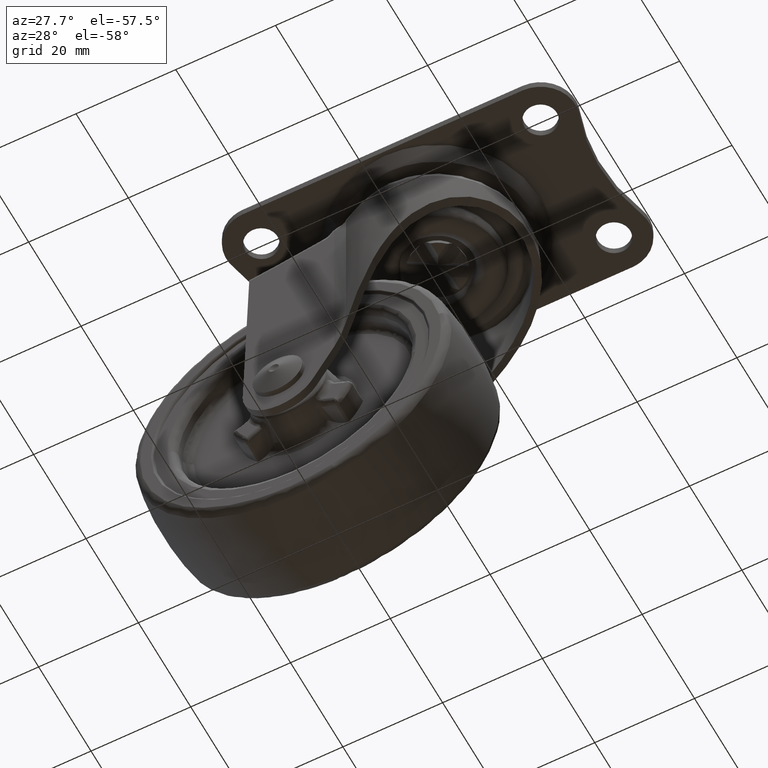
[diagram: clean part render]
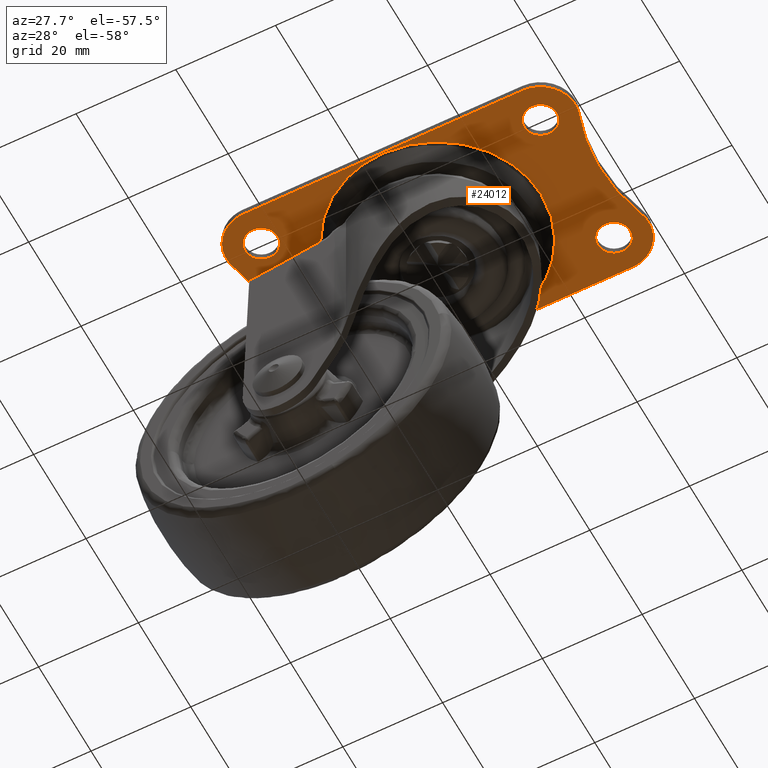
[diagram: same view with one face highlighted and labeled with its STEP entity id]
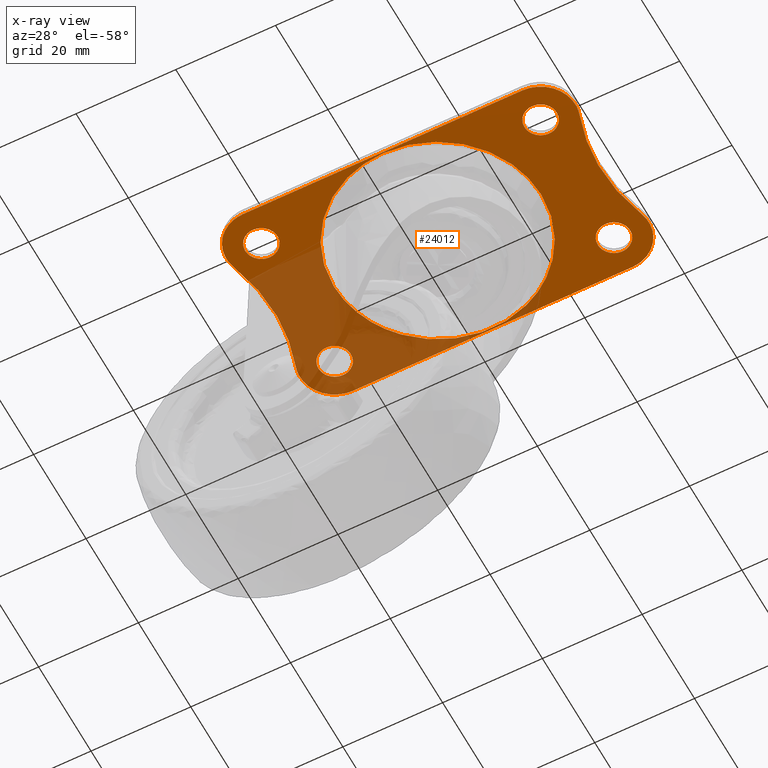
[diagram: x-ray of the same camera — body ghosted, the highlighted face saturated]
A machine part, auxiliary view. The second image highlights one B-rep face of the part: STEP entity #24012.
The next image is the same camera in x-ray: the body ghosted, the highlighted face saturated — about 34% of this face is hidden behind the body in this view.
In plain terms, the highlighted face is a freeform B-spline surface patch.
Its self-contained STEP definition (entity closure, byte-faithful):
#17309=CARTESIAN_POINT('',(-30.098661756561071,16.481556130959309,-3.385563E-011));
#17310=VERTEX_POINT('',#17309);
#17311=CARTESIAN_POINT('',(-31.249999800000001,14.0,0.0));
#17312=VERTEX_POINT('',#17311);
#17313=CARTESIAN_POINT('',(-30.098661756561071,16.481556130959309,-3.385563E-011));
#17314=CARTESIAN_POINT('',(-30.289575070038399,16.320144193689671,-3.165350E-011));
#17315=CARTESIAN_POINT('',(-30.674464882642411,15.909821605328609,-2.605551E-011));
#17316=CARTESIAN_POINT('',(-31.126613348684192,15.073434524501209,-1.464476E-011));
#17317=CARTESIAN_POINT('',(-31.250261647266630,14.382388011248640,-5.216883E-012));
#17318=CARTESIAN_POINT('',(-31.249999800000001,14.0,0.0));
#17319=B_SPLINE_CURVE_WITH_KNOTS('',3,(#17313,#17314,#17315,#17316,#17317,#17318),.UNSPECIFIED.,.F.,.U.,(4,1,1,4),(0.000000054425803,0.750026321936239,1.676517445390193,2.823627087561114),.UNSPECIFIED.);
#17320=EDGE_CURVE('',#17310,#17312,#17319,.T.);
#17381=CARTESIAN_POINT('',(-25.642533913733349,16.237151986497789,1.696325E-011));
#17382=VERTEX_POINT('',#17381);
#17388=CARTESIAN_POINT('',(-24.750000199999999,14.0,0.0));
#17389=VERTEX_POINT('',#17388);
#17390=CARTESIAN_POINT('',(-24.750000199999999,14.0,0.0));
#17391=CARTESIAN_POINT('',(-24.749908724318448,14.282743271637200,2.143907E-012));
#17392=CARTESIAN_POINT('',(-24.807411034701978,14.719628276015140,5.456596E-012));
#17393=CARTESIAN_POINT('',(-25.076228163753239,15.499185421873941,1.136760E-011));
#17394=CARTESIAN_POINT('',(-25.376877605744561,15.957663594679561,1.484402E-011));
#17395=CARTESIAN_POINT('',(-25.642533913733349,16.237151986497789,1.696325E-011));
#17396=B_SPLINE_CURVE_WITH_KNOTS('',3,(#17390,#17391,#17392,#17393,#17394,#17395),.UNSPECIFIED.,.F.,.U.,(4,1,1,4),(0.000000029990643,0.848217231585917,1.310863447302272,2.467516890209405),.UNSPECIFIED.);
#17397=EDGE_CURVE('',#17389,#17382,#17396,.T.);
#17399=CARTESIAN_POINT('',(-27.999997940924779,10.750000200000651,0.0));
#17400=VERTEX_POINT('',#17399);
#17401=CARTESIAN_POINT('',(-27.999997940924779,10.750000200000651,0.0));
#17402=CARTESIAN_POINT('',(-27.654316297015239,10.749811396389889,0.0));
#17403=CARTESIAN_POINT('',(-27.096075449333551,10.839956532808021,0.0));
#17404=CARTESIAN_POINT('',(-26.387743144435149,11.153993051849030,0.0));
#17405=CARTESIAN_POINT('',(-25.863496102247691,11.523209799547359,0.0));
#17406=CARTESIAN_POINT('',(-25.421354080932641,11.987597984934119,0.0));
#17407=CARTESIAN_POINT('',(-25.106918248590979,12.484195756553691,0.0));
#17408=CARTESIAN_POINT('',(-24.831369752554721,13.149255115057841,0.0));
#17409=CARTESIAN_POINT('',(-24.749815337546430,13.654316186226330,0.0));
#17410=CARTESIAN_POINT('',(-24.750000199999999,14.0,0.0));
#17411=B_SPLINE_CURVE_WITH_KNOTS('',3,(#17401,#17402,#17403,#17404,#17405,#17406,#17407,#17408,#17409,#17410),.UNSPECIFIED.,.F.,.U.,(4,1,1,1,1,1,1,4),(0.000000089825204,1.036989856927361,1.675164779641794,2.313321336359128,2.951424046667823,3.589597158345651,4.068224926475018,5.105214694363415),.UNSPECIFIED.);
#17412=EDGE_CURVE('',#17400,#17389,#17411,.T.);
#17414=CARTESIAN_POINT('',(-31.249999800000001,14.0,0.0));
#17415=CARTESIAN_POINT('',(-31.250213411659860,13.654312593257410,0.0));
#17416=CARTESIAN_POINT('',(-31.168603753212881,13.149258355041161,0.0));
#17417=CARTESIAN_POINT('',(-30.893084863574050,12.484194795442169,0.0));
#17418=CARTESIAN_POINT('',(-30.578644659373520,11.987597425052529,0.0));
#17419=CARTESIAN_POINT('',(-30.136500792960518,11.523210283037390,0.0));
#17420=CARTESIAN_POINT('',(-29.612253616706070,11.153992291692401,0.0));
#17421=CARTESIAN_POINT('',(-28.903921136315351,10.839957306355981,0.0));
#17422=CARTESIAN_POINT('',(-28.345678394126999,10.749810213535600,0.0));
#17423=CARTESIAN_POINT('',(-27.999997940924779,10.750000200000651,0.0));
#17424=B_SPLINE_CURVE_WITH_KNOTS('',3,(#17414,#17415,#17416,#17417,#17418,#17419,#17420,#17421,#17422,#17423),.UNSPECIFIED.,.F.,.U.,(4,1,1,1,1,1,1,4),(0.000000087005333,1.036990326245083,1.515618312055995,2.153791714684053,2.791894715985495,3.430051564259903,4.068226777025982,5.105217015478970),.UNSPECIFIED.);
#17425=EDGE_CURVE('',#17312,#17400,#17424,.T.);
#17444=CARTESIAN_POINT('',(-28.000002059075200,17.249999799999340,0.0));
#17445=VERTEX_POINT('',#17444);
#17446=CARTESIAN_POINT('',(-28.000002059075200,17.249999799999340,0.0));
#17447=CARTESIAN_POINT('',(-28.404062435999489,17.250354327009479,-6.518311E-012));
#17448=CARTESIAN_POINT('',(-29.164243231566491,17.106216488580291,-1.878157E-011));
#17449=CARTESIAN_POINT('',(-29.826586633628239,16.711934384757921,-2.946651E-011));
#17450=CARTESIAN_POINT('',(-30.098661756561071,16.481556130959309,-3.385563E-011));
#17451=B_SPLINE_CURVE_WITH_KNOTS('',3,(#17446,#17447,#17448,#17449,#17450),.UNSPECIFIED.,.F.,.U.,(4,1,4),(0.000000032594634,1.212052249070433,2.281526418575037),.UNSPECIFIED.);
#17452=EDGE_CURVE('',#17445,#17310,#17451,.T.);
#17454=CARTESIAN_POINT('',(-25.642533913733349,16.237151986497789,1.696325E-011));
#17455=CARTESIAN_POINT('',(-25.812715551386152,16.416557821205579,1.573870E-011));
#17456=CARTESIAN_POINT('',(-26.173112050005120,16.718425575377690,1.314546E-011));
#17457=CARTESIAN_POINT('',(-26.956197697829911,17.128107008561891,7.510735E-012));
#17458=CARTESIAN_POINT('',(-27.587795409102441,17.250424463961892,2.966049E-012));
#17459=CARTESIAN_POINT('',(-28.000002059075200,17.249999799999340,0.0));
#17460=B_SPLINE_CURVE_WITH_KNOTS('',3,(#17454,#17455,#17456,#17457,#17458,#17459),.UNSPECIFIED.,.F.,.U.,(4,1,1,4),(0.000000023110431,0.741853480680712,1.401278172868833,2.637701045772649),.UNSPECIFIED.);
#17461=EDGE_CURVE('',#17382,#17445,#17460,.T.);
#17514=CARTESIAN_POINT('',(-30.098661756561071,-11.518451869040559,-3.385563E-011));
#17515=VERTEX_POINT('',#17514);
#17516=CARTESIAN_POINT('',(-31.249999800000001,-14.000007999999861,0.0));
#17517=VERTEX_POINT('',#17516);
#17518=CARTESIAN_POINT('',(-30.098661756561071,-11.518451869040559,-3.385563E-011));
#17519=CARTESIAN_POINT('',(-30.267101270838239,-11.660889163102651,-3.191237E-011));
#17520=CARTESIAN_POINT('',(-30.615926322254928,-12.022750811358870,-2.697553E-011));
#17521=CARTESIAN_POINT('',(-31.100881766101480,-12.838575567572990,-1.584531E-011));
#17522=CARTESIAN_POINT('',(-31.250550395561191,-13.558720375572710,-6.020445E-012));
#17523=CARTESIAN_POINT('',(-31.249999800000001,-14.000007999999861,0.0));
#17524=B_SPLINE_CURVE_WITH_KNOTS('',3,(#17518,#17519,#17520,#17521,#17522,#17523),.UNSPECIFIED.,.F.,.U.,(4,1,1,4),(0.000000054423899,0.661787303480974,1.500045669429554,2.823627087561143),.UNSPECIFIED.);
#17525=EDGE_CURVE('',#17515,#17517,#17524,.T.);
#17587=CARTESIAN_POINT('',(-25.642533913733349,-11.762856013502081,1.696325E-011));
#17588=VERTEX_POINT('',#17587);
#17594=CARTESIAN_POINT('',(-24.750000199999999,-14.000007999999861,0.0));
#17595=VERTEX_POINT('',#17594);
#17596=CARTESIAN_POINT('',(-24.750000199999999,-14.000007999999861,0.0));
#17597=CARTESIAN_POINT('',(-24.749914457251609,-13.717268245349519,2.143880E-012));
#17598=CARTESIAN_POINT('',(-24.814149197708399,-13.228967368050281,5.846431E-012));
#17599=CARTESIAN_POINT('',(-25.101989432087709,-12.454516806860640,1.171872E-011));
#17600=CARTESIAN_POINT('',(-25.412391510009030,-12.005133303315979,1.512618E-011));
#17601=CARTESIAN_POINT('',(-25.642533913733349,-11.762856013502081,1.696325E-011));
#17602=B_SPLINE_CURVE_WITH_KNOTS('',3,(#17596,#17597,#17598,#17599,#17600,#17601),.UNSPECIFIED.,.F.,.U.,(4,1,1,4),(0.000000029991018,0.848217231586107,1.465078646143240,2.467516890209395),.UNSPECIFIED.);
#17603=EDGE_CURVE('',#17595,#17588,#17602,.T.);
#17605=CARTESIAN_POINT('',(-27.999997940924779,-17.250007799999210,0.0));
#17606=VERTEX_POINT('',#17605);
#17607=CARTESIAN_POINT('',(-27.999997940924779,-17.250007799999210,0.0));
#17608=CARTESIAN_POINT('',(-27.654315464054751,-17.250196896180320,0.0));
#17609=CARTESIAN_POINT('',(-27.096079152067102,-17.160052226733239,0.0));
#17610=CARTESIAN_POINT('',(-26.387738786887940,-16.846012401988801,0.0));
#17611=CARTESIAN_POINT('',(-25.863494761732369,-16.476804263089250,0.0));
#17612=CARTESIAN_POINT('',(-25.458220595854179,-16.051097735999821,0.0));
#17613=CARTESIAN_POINT('',(-25.132352783317099,-15.563409524979010,0.0));
#17614=CARTESIAN_POINT('',(-24.839945903844882,-14.903933927903729,0.0));
#17615=CARTESIAN_POINT('',(-24.749814123883521,-14.345687319590530,0.0));
#17616=CARTESIAN_POINT('',(-24.750000199999999,-14.000007999999861,0.0));
#17617=B_SPLINE_CURVE_WITH_KNOTS('',3,(#17607,#17608,#17609,#17610,#17611,#17612,#17613,#17614,#17615,#17616),.UNSPECIFIED.,.F.,.U.,(4,1,1,1,1,1,1,4),(0.000000089827980,1.036989856929708,1.675164779643986,2.313321336361044,2.951424046669251,3.430050003559211,4.068224926475595,5.105214694363368),.UNSPECIFIED.);
#17618=EDGE_CURVE('',#17606,#17595,#17617,.T.);
#17620=CARTESIAN_POINT('',(-31.249999800000001,-14.000007999999861,0.0));
#17621=CARTESIAN_POINT('',(-31.250311487733100,-14.398896585603049,0.0));
#17622=CARTESIAN_POINT('',(-31.135992922665750,-15.010185809516930,0.0));
#17623=CARTESIAN_POINT('',(-30.763450315488480,-15.749971387228980,0.0));
#17624=CARTESIAN_POINT('',(-30.401840078235850,-16.213327310746148,0.0));
#17625=CARTESIAN_POINT('',(-29.967245558284301,-16.607227014976619,0.0));
#17626=CARTESIAN_POINT('',(-29.515807313956820,-16.893092489359919,0.0));
#17627=CARTESIAN_POINT('',(-28.850740385757060,-17.168635898527970,0.0));
#17628=CARTESIAN_POINT('',(-28.345683311508228,-17.250194022873959,0.0));
#17629=CARTESIAN_POINT('',(-27.999997940924779,-17.250007799999210,0.0));
#17630=B_SPLINE_CURVE_WITH_KNOTS('',3,(#17620,#17621,#17622,#17623,#17624,#17625,#17626,#17627,#17628,#17629),.UNSPECIFIED.,.F.,.U.,(4,1,1,1,1,1,1,4),(0.000000087005293,1.196534575141488,1.834712008394057,2.472847482041885,2.951425386483005,3.589598791332588,4.068226777025894,5.105217015478966),.UNSPECIFIED.);
#17631=EDGE_CURVE('',#17517,#17606,#17630,.T.);
#17650=CARTESIAN_POINT('',(-28.000002059075200,-10.750008200000510,0.0));
#17651=VERTEX_POINT('',#17650);
#17652=CARTESIAN_POINT('',(-28.000002059075200,-10.750008200000510,0.0));
#17653=CARTESIAN_POINT('',(-28.404069508310869,-10.749616155890060,-6.518425E-012));
#17654=CARTESIAN_POINT('',(-29.164231620853311,-10.893836303574661,-1.878138E-011));
#17655=CARTESIAN_POINT('',(-29.826589329474320,-11.288063454270089,-2.946655E-011));
#17656=CARTESIAN_POINT('',(-30.098661756561071,-11.518451869040559,-3.385563E-011));
#17657=B_SPLINE_CURVE_WITH_KNOTS('',3,(#17652,#17653,#17654,#17655,#17656),.UNSPECIFIED.,.F.,.U.,(4,1,4),(0.000000032594346,1.212052249070190,2.281526418575050),.UNSPECIFIED.);
#17658=EDGE_CURVE('',#17651,#17515,#17657,.T.);
#17660=CARTESIAN_POINT('',(-25.642533913733349,-11.762856013502081,1.696325E-011));
#17661=CARTESIAN_POINT('',(-25.812715470926861,-11.583450149517731,1.573870E-011));
#17662=CARTESIAN_POINT('',(-26.173112247637778,-11.281582644098920,1.314546E-011));
#17663=CARTESIAN_POINT('',(-26.956197566008569,-10.871900301680610,7.510736E-012));
#17664=CARTESIAN_POINT('',(-27.587795361324432,-10.749584689997830,2.966050E-012));
#17665=CARTESIAN_POINT('',(-28.000002059075200,-10.750008200000510,0.0));
#17666=B_SPLINE_CURVE_WITH_KNOTS('',3,(#17660,#17661,#17662,#17663,#17664,#17665),.UNSPECIFIED.,.F.,.U.,(4,1,1,4),(0.000000023110176,0.741853480680397,1.401278172868513,2.637701045772659),.UNSPECIFIED.);
#17667=EDGE_CURVE('',#17588,#17651,#17666,.T.);
#17719=CARTESIAN_POINT('',(25.901338243438929,16.481556130959309,-3.385563E-011));
#17720=VERTEX_POINT('',#17719);
#17721=CARTESIAN_POINT('',(24.750000199999999,14.0,0.0));
#17722=VERTEX_POINT('',#17721);
#17723=CARTESIAN_POINT('',(25.901338243438929,16.481556130959309,-3.385563E-011));
#17724=CARTESIAN_POINT('',(25.710406687070378,16.320153941431339,-3.165364E-011));
#17725=CARTESIAN_POINT('',(25.376244398712672,15.963779588522010,-2.679166E-011));
#17726=CARTESIAN_POINT('',(25.040033699456870,15.389235649795539,-1.895321E-011));
#17727=CARTESIAN_POINT('',(24.809184480803481,14.735283057289619,-1.003140E-011));
#17728=CARTESIAN_POINT('',(24.749910350081809,14.279430620376679,-3.812245E-012));
#17729=CARTESIAN_POINT('',(24.750000199999999,14.0,0.0));
#17730=B_SPLINE_CURVE_WITH_KNOTS('',3,(#17723,#17724,#17725,#17726,#17727,#17728,#17729),.UNSPECIFIED.,.F.,.U.,(4,1,1,1,4),(0.000000054423512,0.750026321934477,1.455906028982394,1.985360742537947,2.823627087561142),.UNSPECIFIED.);
#17731=EDGE_CURVE('',#17720,#17722,#17730,.T.);
#17792=CARTESIAN_POINT('',(30.357466086266658,16.237151986497789,1.696325E-011));
#17793=VERTEX_POINT('',#17792);
#17799=CARTESIAN_POINT('',(31.249999800000001,14.0,0.0));
#17800=VERTEX_POINT('',#17799);
#17801=CARTESIAN_POINT('',(31.249999800000001,14.0,0.0));
#17802=CARTESIAN_POINT('',(31.250085632349730,14.282738854057101,2.143873E-012));
#17803=CARTESIAN_POINT('',(31.185850805434701,14.771042310372060,5.846444E-012));
#17804=CARTESIAN_POINT('',(30.898011441103460,15.545490355492410,1.171871E-011));
#17805=CARTESIAN_POINT('',(30.587608227621288,15.994875092318139,1.512618E-011));
#17806=CARTESIAN_POINT('',(30.357466086266658,16.237151986497789,1.696325E-011));
#17807=B_SPLINE_CURVE_WITH_KNOTS('',3,(#17801,#17802,#17803,#17804,#17805,#17806),.UNSPECIFIED.,.F.,.U.,(4,1,1,4),(0.000000029990609,0.848217231585928,1.465078646143195,2.467516890209410),.UNSPECIFIED.);
#17808=EDGE_CURVE('',#17800,#17793,#17807,.T.);
#17810=CARTESIAN_POINT('',(28.000002059075229,10.750000200000651,0.0));
#17811=VERTEX_POINT('',#17810);
#17812=CARTESIAN_POINT('',(28.000002059075229,10.750000200000651,0.0));
#17813=CARTESIAN_POINT('',(28.292490253884871,10.749894311593151,0.0));
#17814=CARTESIAN_POINT('',(28.744439184679131,10.811455669201081,0.0));
#17815=CARTESIAN_POINT('',(29.372020881011519,11.036015707032190,0.0));
#17816=CARTESIAN_POINT('',(29.883452179297830,11.325714217775900,0.0));
#17817=CARTESIAN_POINT('',(30.368980064776821,11.744547188681580,0.0));
#17818=CARTESIAN_POINT('',(30.763445777014049,12.250040285554549,0.0));
#17819=CARTESIAN_POINT('',(31.136002145696640,12.989820740568350,0.0));
#17820=CARTESIAN_POINT('',(31.250306908550922,13.601111880887700,0.0));
#17821=CARTESIAN_POINT('',(31.249999800000001,14.0,0.0));
#17822=B_SPLINE_CURVE_WITH_KNOTS('',3,(#17812,#17813,#17814,#17815,#17816,#17817,#17818,#17819,#17820,#17821),.UNSPECIFIED.,.F.,.U.,(4,1,1,1,1,1,1,4),(0.000000089830329,0.877442702312377,1.356073448634644,1.994253808092237,2.632368425049950,3.270503607042774,3.908680750576149,5.105214694363358),.UNSPECIFIED.);
#17823=EDGE_CURVE('',#17811,#17800,#17822,.T.);
#17825=CARTESIAN_POINT('',(24.750000199999999,14.0,0.0));
#17826=CARTESIAN_POINT('',(24.749814634652282,13.654317282817670,0.0));
#17827=CARTESIAN_POINT('',(24.831371717560820,13.149252526906251,0.0));
#17828=CARTESIAN_POINT('',(25.106919946959991,12.484196991566661,0.0));
#17829=CARTESIAN_POINT('',(25.421355593252031,11.987596439260541,0.0));
#17830=CARTESIAN_POINT('',(25.863500868566259,11.523208894773919,0.0));
#17831=CARTESIAN_POINT('',(26.387745234496251,11.153991595141090,0.0));
#17832=CARTESIAN_POINT('',(27.096082682998329,10.839973795133369,0.0));
#17833=CARTESIAN_POINT('',(27.654318491992559,10.749790041966550,0.0));
#17834=CARTESIAN_POINT('',(28.000002059075229,10.750000200000651,0.0));
#17835=B_SPLINE_CURVE_WITH_KNOTS('',3,(#17825,#17826,#17827,#17828,#17829,#17830,#17831,#17832,#17833,#17834),.UNSPECIFIED.,.F.,.U.,(4,1,1,1,1,1,1,4),(0.000000087003586,1.036990326243745,1.515618312054816,2.153791714683071,2.791894715984703,3.430051564259262,4.068226777025538,5.105217015478991),.UNSPECIFIED.);
#17836=EDGE_CURVE('',#17722,#17811,#17835,.T.);
#17855=CARTESIAN_POINT('',(27.999997940924800,17.249999799999340,0.0));
#17856=VERTEX_POINT('',#17855);
#17857=CARTESIAN_POINT('',(27.999997940924800,17.249999799999340,0.0));
#17858=CARTESIAN_POINT('',(27.643487565222241,17.250215987029009,-5.751233E-012));
#17859=CARTESIAN_POINT('',(26.883149580266739,17.123569001795769,-1.801702E-011));
#17860=CARTESIAN_POINT('',(26.209631707669150,16.742744206663371,-2.888223E-011));
#17861=CARTESIAN_POINT('',(25.901338243438929,16.481556130959309,-3.385563E-011));
#17862=B_SPLINE_CURVE_WITH_KNOTS('',3,(#17857,#17858,#17859,#17860,#17861),.UNSPECIFIED.,.F.,.U.,(4,1,4),(0.000000032594456,1.069474202111081,2.281526418575044),.UNSPECIFIED.);
#17863=EDGE_CURVE('',#17856,#17720,#17862,.T.);
#17865=CARTESIAN_POINT('',(30.357466086266658,16.237151986497789,1.696325E-011));
#17866=CARTESIAN_POINT('',(30.225080218296739,16.376662966248681,1.601066E-011));
#17867=CARTESIAN_POINT('',(29.873433318979352,16.686884337920869,1.348038E-011));
#17868=CARTESIAN_POINT('',(29.098761844116769,17.117510102921120,7.906198E-012));
#17869=CARTESIAN_POINT('',(28.412191386596120,17.250413141476411,2.965954E-012));
#17870=CARTESIAN_POINT('',(27.999997940924800,17.249999799999340,0.0));
#17871=B_SPLINE_CURVE_WITH_KNOTS('',3,(#17865,#17866,#17867,#17868,#17869,#17870),.UNSPECIFIED.,.F.,.U.,(4,1,1,4),(0.000000023109885,0.576997076861605,1.401278172868587,2.637701045772658),.UNSPECIFIED.);
#17872=EDGE_CURVE('',#17793,#17856,#17871,.T.);
#17924=CARTESIAN_POINT('',(25.901338243438929,-11.518443869040700,-3.385563E-011));
#17925=VERTEX_POINT('',#17924);
#17926=CARTESIAN_POINT('',(24.750000199999999,-14.0,0.0));
#17927=VERTEX_POINT('',#17926);
#17928=CARTESIAN_POINT('',(25.901338243438929,-11.518443869040700,-3.385563E-011));
#17929=CARTESIAN_POINT('',(25.564058370427649,-11.803005277297171,-2.997339E-011));
#17930=CARTESIAN_POINT('',(25.129292069780199,-12.358619226535710,-2.239320E-011));
#17931=CARTESIAN_POINT('',(24.807995798793879,-13.250013022617029,-1.023200E-011));
#17932=CARTESIAN_POINT('',(24.749948679853340,-13.749989803730900,-3.410865E-012));
#17933=CARTESIAN_POINT('',(24.750000199999999,-14.0,0.0));
#17934=B_SPLINE_CURVE_WITH_KNOTS('',3,(#17928,#17929,#17930,#17931,#17932,#17933),.UNSPECIFIED.,.F.,.U.,(4,1,1,4),(0.000000054423562,1.323581472644825,2.073600820049554,2.823627087561115),.UNSPECIFIED.);
#17935=EDGE_CURVE('',#17925,#17927,#17934,.T.);
#17996=CARTESIAN_POINT('',(30.357466086266658,-11.762848013502211,1.696316E-011));
#17997=VERTEX_POINT('',#17996);
#18003=CARTESIAN_POINT('',(31.249999800000001,-14.0,0.0));
#18004=VERTEX_POINT('',#18003);
#18005=CARTESIAN_POINT('',(31.249999800000001,-14.0,0.0));
#18006=CARTESIAN_POINT('',(31.250167449802770,-13.665840732362950,2.533756E-012));
#18007=CARTESIAN_POINT('',(31.154026098662690,-13.049076264787180,7.210360E-012));
#18008=CARTESIAN_POINT('',(30.801482318337541,-12.298205195937619,1.290382E-011));
#18009=CARTESIAN_POINT('',(30.499015466673821,-11.911991942695860,1.583228E-011));
#18010=CARTESIAN_POINT('',(30.357466086266658,-11.762848013502211,1.696316E-011));
#18011=B_SPLINE_CURVE_WITH_KNOTS('',3,(#18005,#18006,#18007,#18008,#18009,#18010),.UNSPECIFIED.,.F.,.U.,(4,1,1,4),(0.000000029991130,1.002438274070260,1.850637675192731,2.467516890209405),.UNSPECIFIED.);
#18012=EDGE_CURVE('',#18004,#17997,#18011,.T.);
#18014=CARTESIAN_POINT('',(28.000002059075221,-17.249999799999340,0.0));
#18015=VERTEX_POINT('',#18014);
#18016=CARTESIAN_POINT('',(28.000002059075221,-17.249999799999340,0.0));
#18017=CARTESIAN_POINT('',(28.345683765828429,-17.250188763694901,0.0));
#18018=CARTESIAN_POINT('',(28.903924188029649,-17.160044316627239,0.0));
#18019=CARTESIAN_POINT('',(29.612256968501061,-16.846007190519199,0.0));
#18020=CARTESIAN_POINT('',(30.136503714839471,-16.476789521176670,0.0));
#18021=CARTESIAN_POINT('',(30.578647599667800,-16.012403228649120,0.0));
#18022=CARTESIAN_POINT('',(30.893085722880681,-15.515803290073359,0.0));
#18023=CARTESIAN_POINT('',(31.168606935657699,-14.850744173895370,0.0));
#18024=CARTESIAN_POINT('',(31.250212069193100,-14.345686106812760,0.0));
#18025=CARTESIAN_POINT('',(31.249999800000001,-14.0,0.0));
#18026=B_SPLINE_CURVE_WITH_KNOTS('',3,(#18016,#18017,#18018,#18019,#18020,#18021,#18022,#18023,#18024,#18025),.UNSPECIFIED.,.F.,.U.,(4,1,1,1,1,1,1,4),(0.000000089828886,1.036989856930174,1.675164779644283,2.313321336361192,2.951424046669371,3.589597158346702,4.068224926475708,5.105214694363362),.UNSPECIFIED.);
#18027=EDGE_CURVE('',#18015,#18004,#18026,.T.);
#18029=CARTESIAN_POINT('',(24.750000199999999,-14.0,0.0));
#18030=CARTESIAN_POINT('',(24.749791958722149,-14.345684850071789,0.0));
#18031=CARTESIAN_POINT('',(24.831390665489259,-14.850744866429221,0.0));
#18032=CARTESIAN_POINT('',(25.106917807160560,-15.515803399293389,0.0));
#18033=CARTESIAN_POINT('',(25.421354498522970,-16.012403143601979,0.0));
#18034=CARTESIAN_POINT('',(25.863499291462102,-16.476790075692481,0.0));
#18035=CARTESIAN_POINT('',(26.387746401903371,-16.846006792822070,0.0));
#18036=CARTESIAN_POINT('',(27.096079478522640,-17.160043858105499,0.0));
#18037=CARTESIAN_POINT('',(27.654320667846441,-17.250188977835599,0.0));
#18038=CARTESIAN_POINT('',(28.000002059075221,-17.249999799999340,0.0));
#18039=B_SPLINE_CURVE_WITH_KNOTS('',3,(#18029,#18030,#18031,#18032,#18033,#18034,#18035,#18036,#18037,#18038),.UNSPECIFIED.,.F.,.U.,(4,1,1,1,1,1,1,4),(0.000000087006509,1.036990326245892,1.515618312056583,2.153791714684384,2.791894715985712,3.430051564259979,4.068226777025934,5.105217015478963),.UNSPECIFIED.);
#18040=EDGE_CURVE('',#17927,#18015,#18039,.T.);
#18059=CARTESIAN_POINT('',(27.999997940924800,-10.750000200000651,0.0));
#18060=VERTEX_POINT('',#18059);
#18061=CARTESIAN_POINT('',(27.999997940924800,-10.750000200000651,0.0));
#18062=CARTESIAN_POINT('',(27.595925542401108,-10.749601777723941,-6.518505E-012));
#18063=CARTESIAN_POINT('',(26.835775185397960,-10.893834429230010,-1.878127E-011));
#18064=CARTESIAN_POINT('',(26.173408354418310,-11.288054282166881,-2.946659E-011));
#18065=CARTESIAN_POINT('',(25.901338243438929,-11.518443869040700,-3.385563E-011));
#18066=B_SPLINE_CURVE_WITH_KNOTS('',3,(#18061,#18062,#18063,#18064,#18065),.UNSPECIFIED.,.F.,.U.,(4,1,4),(0.000000032595433,1.212052249070529,2.281526418575040),.UNSPECIFIED.);
#18067=EDGE_CURVE('',#18060,#17925,#18066,.T.);
#18069=CARTESIAN_POINT('',(30.357466086266658,-11.762848013502211,1.696316E-011));
#18070=CARTESIAN_POINT('',(30.187286024423290,-11.583437279465230,1.573863E-011));
#18071=CARTESIAN_POINT('',(29.826885231977130,-11.281580009844481,1.314537E-011));
#18072=CARTESIAN_POINT('',(29.043804258523011,-10.871889099947190,7.510709E-012));
#18073=CARTESIAN_POINT('',(28.412203852957330,-10.749576967808681,2.966028E-012));
#18074=CARTESIAN_POINT('',(27.999997940924800,-10.750000200000651,0.0));
#18075=B_SPLINE_CURVE_WITH_KNOTS('',3,(#18069,#18070,#18071,#18072,#18073,#18074),.UNSPECIFIED.,.F.,.U.,(4,1,1,4),(0.000000023110362,0.741853480680632,1.401278172868682,2.637701045772652),.UNSPECIFIED.);
#18076=EDGE_CURVE('',#17997,#18060,#18075,.T.);
#21663=CARTESIAN_POINT('',(7.606001770030693,19.358883314457540,-1.598533E-016));
#21664=VERTEX_POINT('',#21663);
#21674=CARTESIAN_POINT('',(20.799462165151049,0.0,0.0));
#21675=VERTEX_POINT('',#21674);
#21676=CARTESIAN_POINT('',(20.799462165151049,0.0,0.0));
#21677=CARTESIAN_POINT('',(20.799638896620849,1.360913566666538,2.141296E-021));
#21678=CARTESIAN_POINT('',(20.563255287703448,3.758631519236005,-2.861906E-018));
#21679=CARTESIAN_POINT('',(19.571475811586041,7.327643054512581,-1.487841E-017));
#21680=CARTESIAN_POINT('',(18.187318519119849,10.273018675054660,-3.164899E-017));
#21681=CARTESIAN_POINT('',(16.541359303816328,12.687910373790890,-5.159160E-017));
#21682=CARTESIAN_POINT('',(14.839538962959830,14.647768260338090,-7.221103E-017));
#21683=CARTESIAN_POINT('',(13.151626855729550,16.171220169305670,-9.266194E-017));
#21684=CARTESIAN_POINT('',(10.726857661401620,17.909864816424310,-1.220407E-016));
#21685=CARTESIAN_POINT('',(8.933078275859103,18.837743094888410,-1.437743E-016));
#21686=CARTESIAN_POINT('',(7.606001770030693,19.358883314457540,-1.598533E-016));
#21687=B_SPLINE_CURVE_WITH_KNOTS('',3,(#21676,#21677,#21678,#21679,#21680,#21681,#21682,#21683,#21684,#21685,#21686),.UNSPECIFIED.,.F.,.U.,(4,1,1,1,1,1,1,1,4),(0.000000025877984,4.082724116002545,7.193383439206258,11.081720072365430,13.803475864267501,15.942061036973980,18.858312625384901,20.608052781927530,24.885195575194029),.UNSPECIFIED.);
#21688=EDGE_CURVE('',#21675,#21664,#21687,.T.);
#21690=CARTESIAN_POINT('',(0.000001673312321,-20.799462165150981,0.0));
#21691=VERTEX_POINT('',#21690);
#21692=CARTESIAN_POINT('',(0.000001673312321,-20.799462165150981,0.0));
#21693=CARTESIAN_POINT('',(1.361342501458982,-20.799673436934960,0.0));
#21694=CARTESIAN_POINT('',(3.318150462266140,-20.606596211014601,0.0));
#21695=CARTESIAN_POINT('',(6.296610188826508,-19.879958090549518,0.0));
#21696=CARTESIAN_POINT('',(8.930736509526158,-18.882456696623851,0.0));
#21697=CARTESIAN_POINT('',(11.594912461063970,-17.351466679593958,0.0));
#21698=CARTESIAN_POINT('',(13.980548474535340,-15.489702532979630,0.0));
#21699=CARTESIAN_POINT('',(15.881561977567950,-13.529458116909550,0.0));
#21700=CARTESIAN_POINT('',(17.549982005651291,-11.265280779207970,0.0));
#21701=CARTESIAN_POINT('',(19.046895657184901,-8.584971702818955,0.0));
#21702=CARTESIAN_POINT('',(20.411814732941689,-4.806967521854014,0.0));
#21703=CARTESIAN_POINT('',(20.799957195754018,-1.744230676461712,0.0));
#21704=CARTESIAN_POINT('',(20.799462165151049,0.0,0.0));
#21705=B_SPLINE_CURVE_WITH_KNOTS('',3,(#21692,#21693,#21694,#21695,#21696,#21697,#21698,#21699,#21700,#21701,#21702,#21703,#21704),.UNSPECIFIED.,.F.,.U.,(4,1,1,1,1,1,1,1,1,1,4),(0.000000080335930,4.083963364715494,5.870698465093867,9.188942364008920,12.507170856878510,15.059657776311020,18.250236132066970,20.675079639132829,23.482828109709018,27.439201303985950,32.671769077666802),.UNSPECIFIED.);
#21706=EDGE_CURVE('',#21691,#21675,#21705,.T.);
#21708=CARTESIAN_POINT('',(-20.799462165151049,0.0,0.0));
#21709=VERTEX_POINT('',#21708);
#21710=CARTESIAN_POINT('',(-20.799462165151049,0.0,0.0));
#21711=CARTESIAN_POINT('',(-20.799493206051672,-0.935907931441164,0.0));
#21712=CARTESIAN_POINT('',(-20.658570404574871,-3.020430841805894,0.0));
#21713=CARTESIAN_POINT('',(-20.003656860283520,-5.979629249303432,0.0));
#21714=CARTESIAN_POINT('',(-18.990760724506352,-8.605160952913554,0.0));
#21715=CARTESIAN_POINT('',(-17.792818376168992,-10.863012797012811,0.0));
#21716=CARTESIAN_POINT('',(-16.290906686444590,-13.037848507322961,0.0));
#21717=CARTESIAN_POINT('',(-14.272137412389201,-15.237983060468880,0.0));
#21718=CARTESIAN_POINT('',(-11.680258299483420,-17.325494684413041,0.0));
#21719=CARTESIAN_POINT('',(-8.553327832414636,-19.084318343207951,0.0));
#21720=CARTESIAN_POINT('',(-4.594290851747079,-20.446308168451111,0.0));
#21721=CARTESIAN_POINT('',(-1.659138536520013,-20.799851583040461,0.0));
#21722=CARTESIAN_POINT('',(0.000001673312321,-20.799462165150981,0.0));
#21723=B_SPLINE_CURVE_WITH_KNOTS('',3,(#21710,#21711,#21712,#21713,#21714,#21715,#21716,#21717,#21718,#21719,#21720,#21721,#21722),.UNSPECIFIED.,.F.,.U.,(4,1,1,1,1,1,1,1,1,1,4),(0.000000080252804,2.807726910717392,6.253580684956294,9.061313063381125,11.230923295756890,13.911065700938160,16.973998941757941,20.164608312446791,23.865706626377591,27.694449820392808,32.671770963882587),.UNSPECIFIED.);
#21724=EDGE_CURVE('',#21709,#21691,#21723,.T.);
#21726=CARTESIAN_POINT('',(-18.351182970791189,9.790388621804574,-4.435881E-016));
#21727=VERTEX_POINT('',#21726);
#21728=CARTESIAN_POINT('',(-18.351182970791189,9.790388621804574,-4.435881E-016));
#21729=CARTESIAN_POINT('',(-18.776027318037709,8.994077473700385,-3.666132E-016));
#21730=CARTESIAN_POINT('',(-19.653577648364969,7.055253917545698,-2.076155E-016));
#21731=CARTESIAN_POINT('',(-20.569485105033689,3.769470485618992,-4.166807E-017));
#21732=CARTESIAN_POINT('',(-20.799573209653150,1.274203060063560,2.011944E-020));
#21733=CARTESIAN_POINT('',(-20.799462165151049,0.0,0.0));
#21734=B_SPLINE_CURVE_WITH_KNOTS('',3,(#21728,#21729,#21730,#21731,#21732,#21733),.UNSPECIFIED.,.F.,.U.,(4,1,1,4),(8.064733E-009,2.707675924341371,6.371000541159907,10.193601159152029),.UNSPECIFIED.);
#21735=EDGE_CURVE('',#21727,#21709,#21734,.T.);
#21772=CARTESIAN_POINT('',(7.606001770030693,19.358883314457540,-1.598533E-016));
#21773=CARTESIAN_POINT('',(6.505706373116855,19.791295915124209,-1.314959E-016));
#21774=CARTESIAN_POINT('',(4.534385440302101,20.377467779739600,-8.977643E-017));
#21775=CARTESIAN_POINT('',(1.837126152018948,20.761202349933900,-5.285187E-017));
#21776=CARTESIAN_POINT('',(-0.647292406623984,20.836978544051391,-3.222261E-017));
#21777=CARTESIAN_POINT('',(-3.323304497431647,20.606238995293289,-2.505539E-017));
#21778=CARTESIAN_POINT('',(-6.670588841233396,19.819225096452630,-4.010841E-017));
#21779=CARTESIAN_POINT('',(-9.867630601613289,18.429639496050719,-8.522669E-017));
#21780=CARTESIAN_POINT('',(-12.868100977141729,16.449183472234530,-1.601629E-016));
#21781=CARTESIAN_POINT('',(-15.789835195369729,13.783422417912631,-2.686628E-016));
#21782=CARTESIAN_POINT('',(-17.516864533208171,11.355233829109871,-3.738779E-016));
#21783=CARTESIAN_POINT('',(-18.351182970791189,9.790388621804574,-4.435881E-016));
#21784=B_SPLINE_CURVE_WITH_KNOTS('',3,(#21772,#21773,#21774,#21775,#21776,#21777,#21778,#21779,#21780,#21781,#21782,#21783),.UNSPECIFIED.,.F.,.U.,(4,1,1,1,1,1,1,1,1,4),(0.000000062997056,3.546629136937899,6.147527858986070,8.157312889955822,10.994654362874069,14.186668054729569,18.442582893989670,21.398156899952081,24.944828267971509,30.264797023986240),.UNSPECIFIED.);
#21785=EDGE_CURVE('',#21664,#21727,#21784,.T.);
#23617=CARTESIAN_POINT('',(34.612583487418703,11.703537585346320,0.0));
#23618=VERTEX_POINT('',#23617);
#23619=CARTESIAN_POINT('',(28.000001329768750,20.999999999999400,0.0));
#23620=VERTEX_POINT('',#23619);
#23621=CARTESIAN_POINT('',(34.612583487418703,11.703537585346320,0.0));
#23622=CARTESIAN_POINT('',(34.806410265303469,12.261191175475020,0.0));
#23623=CARTESIAN_POINT('',(35.001099202715999,13.186053468029060,0.0));
#23624=CARTESIAN_POINT('',(35.011339467200280,14.683471436696300,0.0));
#23625=CARTESIAN_POINT('',(34.725913709719862,16.195659444919912,0.0));
#23626=CARTESIAN_POINT('',(34.054734732017081,17.622487222436789,0.0));
#23627=CARTESIAN_POINT('',(33.183771654595454,18.754919441840912,0.0));
#23628=CARTESIAN_POINT('',(32.234788911828367,19.628764857042039,0.0));
#23629=CARTESIAN_POINT('',(30.985137045389639,20.396240538959450,0.0));
#23630=CARTESIAN_POINT('',(29.527997921312011,20.891072957064381,0.0));
#23631=CARTESIAN_POINT('',(28.486188905133790,21.000064466772770,0.0));
#23632=CARTESIAN_POINT('',(28.000001329768750,20.999999999999400,0.0));
#23633=B_SPLINE_CURVE_WITH_KNOTS('',3,(#23621,#23622,#23623,#23624,#23625,#23626,#23627,#23628,#23629,#23630,#23631,#23632),.UNSPECIFIED.,.F.,.U.,(4,1,1,1,1,1,1,1,1,4),(0.000000138381710,1.771099995573055,2.812944523595879,4.479892436929735,6.355244094344795,7.501195712530091,8.751407923253083,10.209984568470951,11.876918722628229,13.335485223338599),.UNSPECIFIED.);
#23634=EDGE_CURVE('',#23618,#23620,#23633,.T.);
#23683=CARTESIAN_POINT('',(34.609303948770297,-11.694115936832601,0.0));
#23684=VERTEX_POINT('',#23683);
#23685=CARTESIAN_POINT('',(34.612583487418703,11.703537585346320,0.0));
#23686=CARTESIAN_POINT('',(34.080288614097931,10.179423299840879,0.0));
#23687=CARTESIAN_POINT('',(33.224198990431802,7.058407162725160,0.0));
#23688=CARTESIAN_POINT('',(32.637398246890498,2.615978827907440,0.0));
#23689=CARTESIAN_POINT('',(32.589147274315032,-1.922733545564601,0.0));
#23690=CARTESIAN_POINT('',(33.121046494896042,-6.623562739587851,0.0));
#23691=CARTESIAN_POINT('',(34.016046875603081,-9.993981389135225,0.0));
#23692=CARTESIAN_POINT('',(34.609303948770297,-11.694115936832601,0.0));
#23693=B_SPLINE_CURVE_WITH_KNOTS('',3,(#23685,#23686,#23687,#23688,#23689,#23690,#23691,#23692),.UNSPECIFIED.,.F.,.U.,(4,1,1,1,1,4),(0.000000012532659,4.843172959621548,9.686353933593566,13.411852832706201,18.441316909063790,23.843318481567540),.UNSPECIFIED.);
#23694=EDGE_CURVE('',#23618,#23684,#23693,.T.);
#23731=CARTESIAN_POINT('',(28.0,-21.0,0.0));
#23732=VERTEX_POINT('',#23731);
#23733=CARTESIAN_POINT('',(28.0,-21.0,0.0));
#23734=CARTESIAN_POINT('',(28.451787088046249,-21.000026526808899,0.0));
#23735=CARTESIAN_POINT('',(29.494407881139999,-20.898829153888801,0.0));
#23736=CARTESIAN_POINT('',(30.990763791217951,-20.402643252509311,0.0));
#23737=CARTESIAN_POINT('',(32.206636723348602,-19.642680437932729,0.0));
#23738=CARTESIAN_POINT('',(33.109091539244787,-18.823046560283760,0.0));
#23739=CARTESIAN_POINT('',(33.836795572266652,-17.931653214691700,0.0));
#23740=CARTESIAN_POINT('',(34.412008259232877,-16.893173580488529,0.0));
#23741=CARTESIAN_POINT('',(34.812516475909007,-15.741035075903120,0.0));
#23742=CARTESIAN_POINT('',(35.025998557591777,-14.503168920699871,0.0));
#23743=CARTESIAN_POINT('',(34.993954128806138,-13.105823205783629,0.0));
#23744=CARTESIAN_POINT('',(34.769649897611593,-12.153488690416630,0.0));
#23745=CARTESIAN_POINT('',(34.609303948770297,-11.694115936832601,0.0));
#23746=B_SPLINE_CURVE_WITH_KNOTS('',3,(#23733,#23734,#23735,#23736,#23737,#23738,#23739,#23740,#23741,#23742,#23743,#23744,#23745),.UNSPECIFIED.,.F.,.U.,(4,1,1,1,1,1,1,1,1,1,4),(0.000000138863722,1.355383561124457,3.127842263619471,4.691788952713335,5.630155220700944,6.776966463712807,8.132389298987675,9.174989975411343,10.426150662855211,11.885805178005841,13.345462943577919),.UNSPECIFIED.);
#23747=EDGE_CURVE('',#23732,#23684,#23746,.T.);
#23790=CARTESIAN_POINT('',(-34.609300374364203,-11.694120049033801,0.0));
#23791=VERTEX_POINT('',#23790);
#23792=CARTESIAN_POINT('',(-28.000006108652400,-20.999999999997350,0.0));
#23793=VERTEX_POINT('',#23792);
#23794=CARTESIAN_POINT('',(-34.609300374364203,-11.694120049033801,0.0));
#23795=CARTESIAN_POINT('',(-34.781109416109572,-12.186289431142370,0.0));
#23796=CARTESIAN_POINT('',(-35.014005853930087,-13.209244088928481,0.0));
#23797=CARTESIAN_POINT('',(-35.014770326355652,-14.573079968243229,0.0));
#23798=CARTESIAN_POINT('',(-34.774015715050240,-15.910065994951241,0.0));
#23799=CARTESIAN_POINT('',(-34.260943431835592,-17.286315059592521,0.0));
#23800=CARTESIAN_POINT('',(-33.366546698748820,-18.586346439676749,0.0));
#23801=CARTESIAN_POINT('',(-32.391430392402469,-19.484817995636220,0.0));
#23802=CARTESIAN_POINT('',(-31.469310116991391,-20.110037219093151,0.0));
#23803=CARTESIAN_POINT('',(-30.525309655915301,-20.562351967579168,0.0));
#23804=CARTESIAN_POINT('',(-29.320603628989488,-20.912670551004791,0.0));
#23805=CARTESIAN_POINT('',(-28.486560284043339,-21.000074390632150,0.0));
#23806=CARTESIAN_POINT('',(-28.000006108652400,-20.999999999997350,0.0));
#23807=B_SPLINE_CURVE_WITH_KNOTS('',3,(#23794,#23795,#23796,#23797,#23798,#23799,#23800,#23801,#23802,#23803,#23804,#23805,#23806),.UNSPECIFIED.,.F.,.U.,(4,1,1,1,1,1,1,1,1,1,4),(0.000000138849229,1.563884633455832,3.127839431044100,4.066206403740646,5.630150122021423,7.506801390771573,8.757947838236419,9.592035127607343,10.843194681988390,11.885794414236679,13.345450857973381),.UNSPECIFIED.);
#23808=EDGE_CURVE('',#23791,#23793,#23807,.T.);
#23857=CARTESIAN_POINT('',(-34.611171447356462,11.699465691574160,0.0));
#23858=VERTEX_POINT('',#23857);
#23859=CARTESIAN_POINT('',(-34.609300374364203,-11.694120049033801,0.0));
#23860=CARTESIAN_POINT('',(-33.893289409930873,-9.642634396434234,0.0));
#23861=CARTESIAN_POINT('',(-33.110952743638236,-6.496662901872340,0.0));
#23862=CARTESIAN_POINT('',(-32.550965668528242,-1.306797946675044,0.0));
#23863=CARTESIAN_POINT('',(-32.644110586945452,3.115473272725623,0.0));
#23864=CARTESIAN_POINT('',(-33.409868323714427,7.779038209807315,0.0));
#23865=CARTESIAN_POINT('',(-34.161038551234313,10.410001882901829,0.0));
#23866=CARTESIAN_POINT('',(-34.611171447356462,11.699465691574160,0.0));
#23867=B_SPLINE_CURVE_WITH_KNOTS('',3,(#23859,#23860,#23861,#23862,#23863,#23864,#23865,#23866),.UNSPECIFIED.,.F.,.U.,(4,1,1,1,1,4),(0.000000012526694,6.518479522932498,9.684603534323395,15.644345966575990,19.741687383398439,23.839009813409330),.UNSPECIFIED.);
#23868=EDGE_CURVE('',#23791,#23858,#23867,.T.);
#23908=CARTESIAN_POINT('',(-27.999999525442600,20.999989999999450,-2.775558E-013));
#23909=VERTEX_POINT('',#23908);
#23915=CARTESIAN_POINT('',(-27.999999525442600,20.999989999999450,-2.775558E-013));
#23916=CARTESIAN_POINT('',(-28.590570429171230,21.000158142623238,-2.462788E-013));
#23917=CARTESIAN_POINT('',(-29.528408651364899,20.880533972516378,-1.975458E-013));
#23918=CARTESIAN_POINT('',(-31.012741797997950,20.376338531791522,-1.228718E-013));
#23919=CARTESIAN_POINT('',(-32.338760721103547,19.588791114249108,-5.879235E-014));
#23920=CARTESIAN_POINT('',(-33.546468946721312,18.372061527187309,-4.326849E-015));
#23921=CARTESIAN_POINT('',(-34.333275179334791,17.091366694599259,2.734937E-014));
#23922=CARTESIAN_POINT('',(-34.847528184761309,15.682537609649550,4.359198E-014));
#23923=CARTESIAN_POINT('',(-35.035115389350032,14.366400384412209,4.325810E-014));
#23924=CARTESIAN_POINT('',(-34.962574518388237,12.974852824304740,2.855995E-014));
#23925=CARTESIAN_POINT('',(-34.771077139439683,12.158773085457410,1.205173E-014));
#23926=CARTESIAN_POINT('',(-34.611171447356462,11.699465691574160,0.0));
#23927=B_SPLINE_CURVE_WITH_KNOTS('',3,(#23915,#23916,#23917,#23918,#23919,#23920,#23921,#23922,#23923,#23924,#23925,#23926),.UNSPECIFIED.,.F.,.U.,(4,1,1,1,1,1,1,1,1,4),(0.000000138556775,1.771671360673929,2.813852021070817,4.689793633739429,6.357294432765556,7.920463027256855,9.171088114869676,10.838593161955741,11.880750437981471,13.339787476880719),.UNSPECIFIED.);
#23928=EDGE_CURVE('',#23909,#23858,#23927,.T.);
#23950=CARTESIAN_POINT('',(-38.495403570876277,23.097899918595221,0.0));
#23951=CARTESIAN_POINT('',(38.495460782248017,23.097899918595221,0.0));
#23952=CARTESIAN_POINT('',(-38.495403570876277,-23.097901045123610,0.0));
#23953=CARTESIAN_POINT('',(38.495460782248017,-23.097901045123610,0.0));
#23954=B_SPLINE_SURFACE_WITH_KNOTS('',1,1,((#23950,#23952),(#23951,#23953)),.UNSPECIFIED.,.F.,.F.,.U.,(2,2),(2,2),(0.0,76.990864353124294),(0.0,46.195800963718817),.UNSPECIFIED.);
#23955=CARTESIAN_POINT('',(28.000001329768750,20.999999999999400,0.0));
#23956=CARTESIAN_POINT('',(-27.999999525442600,20.999989999999450,-2.775558E-013));
#23957=QUASI_UNIFORM_CURVE('',1,(#23955,#23956),.UNSPECIFIED.,.F.,.U.);
#23958=EDGE_CURVE('',#23620,#23909,#23957,.T.);
#23959=ORIENTED_EDGE('',*,*,#23958,.F.);
#23960=ORIENTED_EDGE('',*,*,#23634,.F.);
#23961=ORIENTED_EDGE('',*,*,#23694,.T.);
#23962=ORIENTED_EDGE('',*,*,#23747,.F.);
#23963=CARTESIAN_POINT('',(-28.000006108652400,-20.999999999997350,0.0));
#23964=CARTESIAN_POINT('',(28.0,-21.0,0.0));
#23965=QUASI_UNIFORM_CURVE('',1,(#23963,#23964),.UNSPECIFIED.,.F.,.U.);
#23966=EDGE_CURVE('',#23793,#23732,#23965,.T.);
#23967=ORIENTED_EDGE('',*,*,#23966,.F.);
#23968=ORIENTED_EDGE('',*,*,#23808,.F.);
#23969=ORIENTED_EDGE('',*,*,#23868,.T.);
#23970=ORIENTED_EDGE('',*,*,#23928,.F.);
#23971=EDGE_LOOP('',(#23959,#23960,#23961,#23962,#23967,#23968,#23969,#23970));
#23972=FACE_OUTER_BOUND('',#23971,.T.);
#23973=ORIENTED_EDGE('',*,*,#21735,.T.);
#23974=ORIENTED_EDGE('',*,*,#21724,.T.);
#23975=ORIENTED_EDGE('',*,*,#21706,.T.);
#23976=ORIENTED_EDGE('',*,*,#21688,.T.);
#23977=ORIENTED_EDGE('',*,*,#21785,.T.);
#23978=EDGE_LOOP('',(#23973,#23974,#23975,#23976,#23977));
#23979=FACE_BOUND('',#23978,.T.);
#23980=ORIENTED_EDGE('',*,*,#17425,.T.);
#23981=ORIENTED_EDGE('',*,*,#17412,.T.);
#23982=ORIENTED_EDGE('',*,*,#17397,.T.);
#23983=ORIENTED_EDGE('',*,*,#17461,.T.);
#23984=ORIENTED_EDGE('',*,*,#17452,.T.);
#23985=ORIENTED_EDGE('',*,*,#17320,.T.);
#23986=EDGE_LOOP('',(#23980,#23981,#23982,#23983,#23984,#23985));
#23987=FACE_BOUND('',#23986,.T.);
#23988=ORIENTED_EDGE('',*,*,#17631,.T.);
#23989=ORIENTED_EDGE('',*,*,#17618,.T.);
#23990=ORIENTED_EDGE('',*,*,#17603,.T.);
#23991=ORIENTED_EDGE('',*,*,#17667,.T.);
#23992=ORIENTED_EDGE('',*,*,#17658,.T.);
#23993=ORIENTED_EDGE('',*,*,#17525,.T.);
#23994=EDGE_LOOP('',(#23988,#23989,#23990,#23991,#23992,#23993));
#23995=FACE_BOUND('',#23994,.T.);
#23996=ORIENTED_EDGE('',*,*,#17836,.T.);
#23997=ORIENTED_EDGE('',*,*,#17823,.T.);
#23998=ORIENTED_EDGE('',*,*,#17808,.T.);
#23999=ORIENTED_EDGE('',*,*,#17872,.T.);
#24000=ORIENTED_EDGE('',*,*,#17863,.T.);
#24001=ORIENTED_EDGE('',*,*,#17731,.T.);
#24002=EDGE_LOOP('',(#23996,#23997,#23998,#23999,#24000,#24001));
#24003=FACE_BOUND('',#24002,.T.);
#24004=ORIENTED_EDGE('',*,*,#18040,.T.);
#24005=ORIENTED_EDGE('',*,*,#18027,.T.);
#24006=ORIENTED_EDGE('',*,*,#18012,.T.);
#24007=ORIENTED_EDGE('',*,*,#18076,.T.);
#24008=ORIENTED_EDGE('',*,*,#18067,.T.);
#24009=ORIENTED_EDGE('',*,*,#17935,.T.);
#24010=EDGE_LOOP('',(#24004,#24005,#24006,#24007,#24008,#24009));
#24011=FACE_BOUND('',#24010,.T.);
#24012=ADVANCED_FACE('',(#23972,#23979,#23987,#23995,#24003,#24011),#23954,.T.);